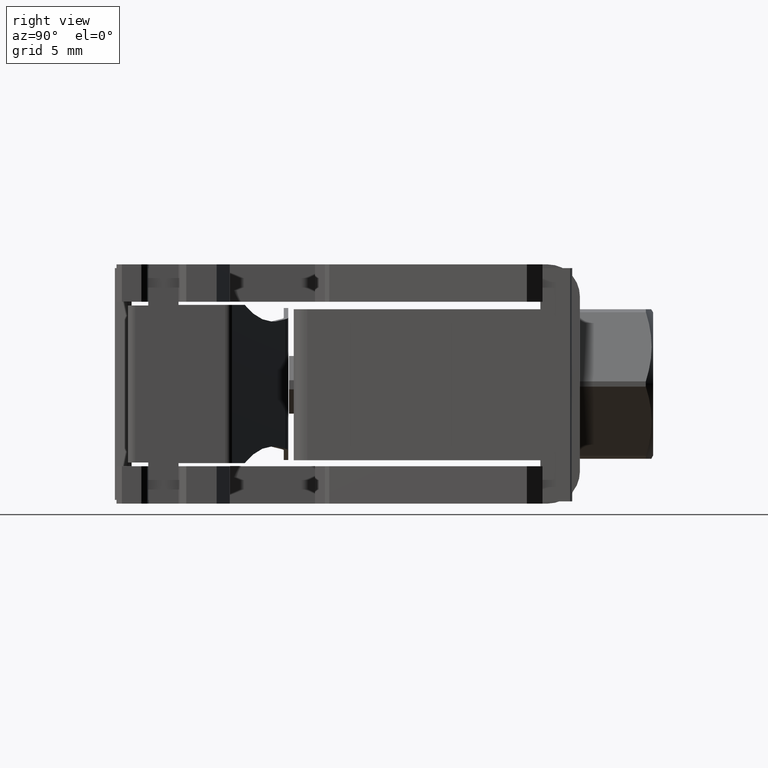
[diagram: clean part render]
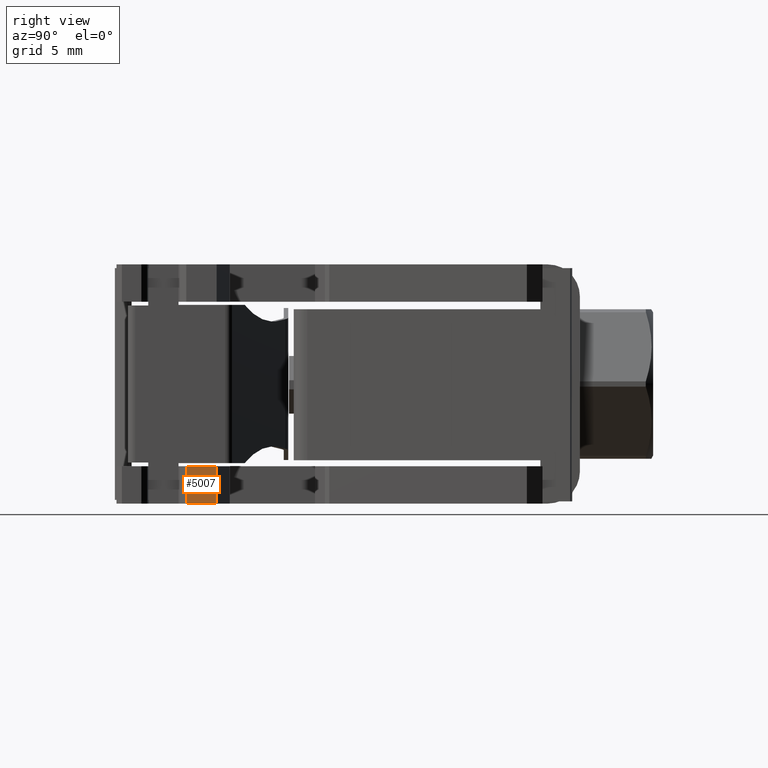
[diagram: same view with one face highlighted and labeled with its STEP entity id]
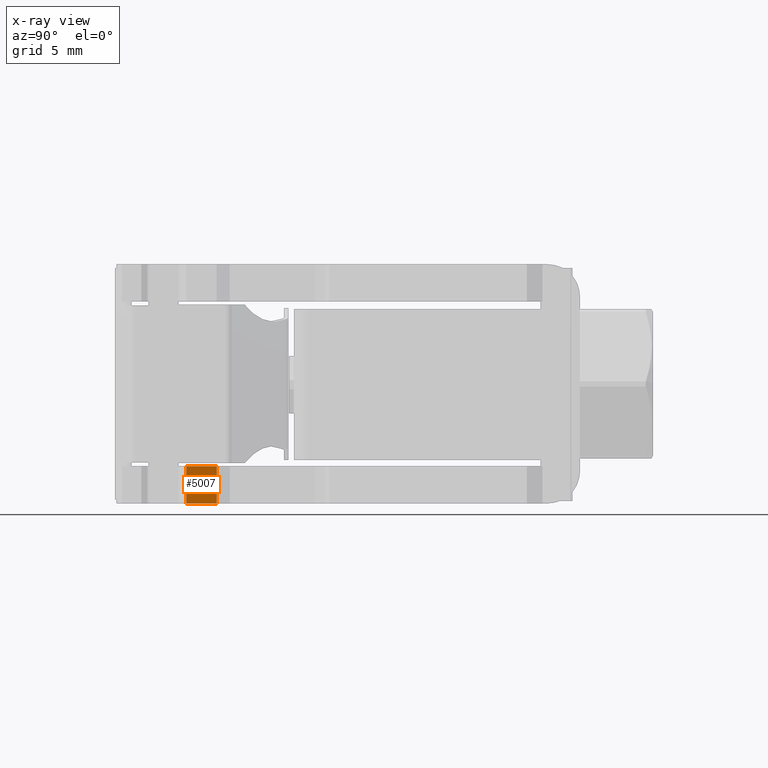
[diagram: x-ray of the same camera — body ghosted, the highlighted face saturated]
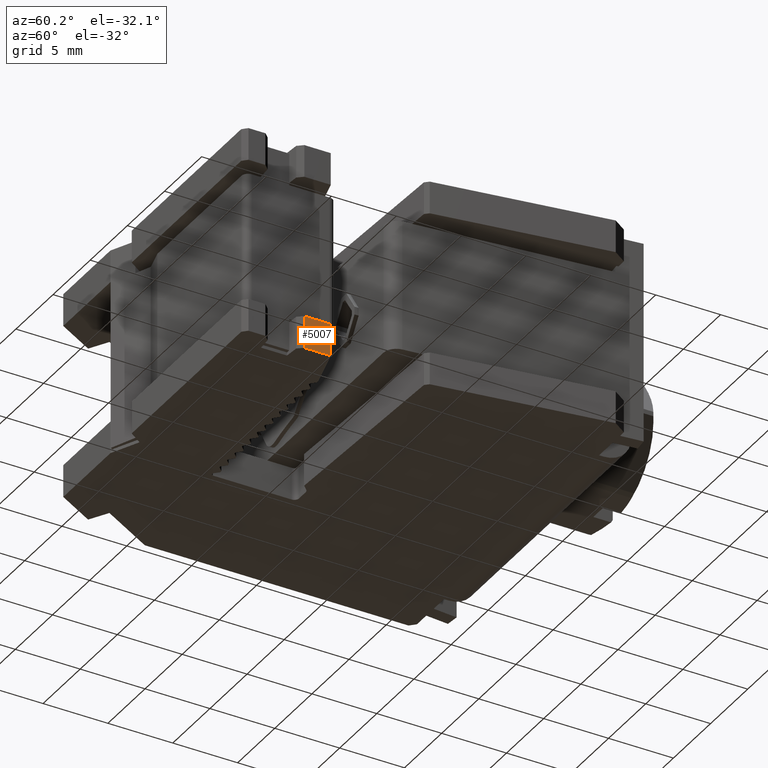
[diagram: same view with one face highlighted and labeled with its STEP entity id]
A machine part, right view. The second image highlights one B-rep face of the part: STEP entity #5007.
The next image is the same camera in x-ray: the body ghosted, the highlighted face saturated — about 0% of this face is hidden behind the body in this view.
A second angle (auxiliary view) of the same face is appended — the face is thin or edge-on in the first view.
In plain terms, the highlighted planar face has unit normal (-1, 0, 0).
Its self-contained STEP definition (entity closure, byte-faithful):
#595 = EDGE_CURVE ( 'NONE', #3469, #3402, #5746, .T. ) ;
#1936 = EDGE_CURVE ( 'NONE', #3469, #2225, #8044, .T. ) ;
#1987 = EDGE_CURVE ( 'NONE', #3402, #2335, #8237, .T. ) ;
#2108 = EDGE_CURVE ( 'NONE', #2335, #2225, #9460, .T. ) ;
#2225 = VERTEX_POINT ( 'NONE', #9785 ) ;
#2335 = VERTEX_POINT ( 'NONE', #9895 ) ;
#3402 = VERTEX_POINT ( 'NONE', #10274 ) ;
#3469 = VERTEX_POINT ( 'NONE', #10349 ) ;
#4034 = ORIENTED_EDGE ( 'NONE', *, *, #595, .T. ) ;
#4038 = ORIENTED_EDGE ( 'NONE', *, *, #1936, .F. ) ;
#4042 = ORIENTED_EDGE ( 'NONE', *, *, #2108, .T. ) ;
#4048 = ORIENTED_EDGE ( 'NONE', *, *, #1987, .T. ) ;
#5007 = ADVANCED_FACE ( 'NONE', ( #11409 ), #11404, .F. ) ;
#5741 = DIRECTION ( 'NONE',  ( 0.0000000000000000000, -1.000000000000000000, -9.876146906881995500E-017 ) ) ;
#5745 = CARTESIAN_POINT ( 'NONE',  ( 21.53677823012340300, -13.43875933738560700, -1.500000000000004900 ) ) ;
#5746 = LINE ( 'NONE', #5745, #11575 ) ;
#7696 = VECTOR ( 'NONE', #8030, 1000.000000000000000 ) ;
#7708 = VECTOR ( 'NONE', #8242, 1000.000000000000000 ) ;
#8021 = CARTESIAN_POINT ( 'NONE',  ( 21.53677823012340300, 5.531659180092668200, 8.000000000000000000 ) ) ;
#8030 = DIRECTION ( 'NONE',  ( -0.0000000000000000000, -0.0000000000000000000, -1.000000000000000000 ) ) ;
#8044 = LINE ( 'NONE', #8021, #7696 ) ;
#8235 = CARTESIAN_POINT ( 'NONE',  ( 21.53677823012340300, 3.494381264009347900, 8.000000000000000000 ) ) ;
#8237 = LINE ( 'NONE', #8235, #7708 ) ;
#8242 = DIRECTION ( 'NONE',  ( -0.0000000000000000000, -0.0000000000000000000, -1.000000000000000000 ) ) ;
#9103 = AXIS2_PLACEMENT_3D ( 'NONE', #11405, #11375, #11411 ) ;
#9251 = VECTOR ( 'NONE', #9461, 1000.000000000000000 ) ;
#9460 = LINE ( 'NONE', #9471, #9251 ) ;
#9461 = DIRECTION ( 'NONE',  ( 0.0000000000000000000, 1.000000000000000000, 0.0000000000000000000 ) ) ;
#9471 = CARTESIAN_POINT ( 'NONE',  ( 21.53677823012340300, -13.43875933738560800, -4.000000000000000000 ) ) ;
#9785 = CARTESIAN_POINT ( 'NONE',  ( 21.53677823012340300, 5.531659180092668200, -4.000000000000000000 ) ) ;
#9895 = CARTESIAN_POINT ( 'NONE',  ( 21.53677823012340300, 3.494381264009347900, -4.000000000000000000 ) ) ;
#10274 = CARTESIAN_POINT ( 'NONE',  ( 21.53677823012340300, 3.494381264009347900, -1.500000000000003100 ) ) ;
#10349 = CARTESIAN_POINT ( 'NONE',  ( 21.53677823012340300, 5.531659180092668200, -1.500000000000001300 ) ) ;
#11375 = DIRECTION ( 'NONE',  ( -1.000000000000000000, 0.0000000000000000000, 0.0000000000000000000 ) ) ;
#11404 = PLANE ( 'NONE',  #9103 ) ;
#11405 = CARTESIAN_POINT ( 'NONE',  ( 21.53677823012340300, -13.43875933738560800, 8.000000000000000000 ) ) ;
#11409 = FACE_OUTER_BOUND ( 'NONE', #11955, .T. ) ;
#11411 = DIRECTION ( 'NONE',  ( 0.0000000000000000000, 0.0000000000000000000, 1.000000000000000000 ) ) ;
#11575 = VECTOR ( 'NONE', #5741, 1000.000000000000000 ) ;
#11955 = EDGE_LOOP ( 'NONE', ( #4038, #4034, #4048, #4042 ) ) ;